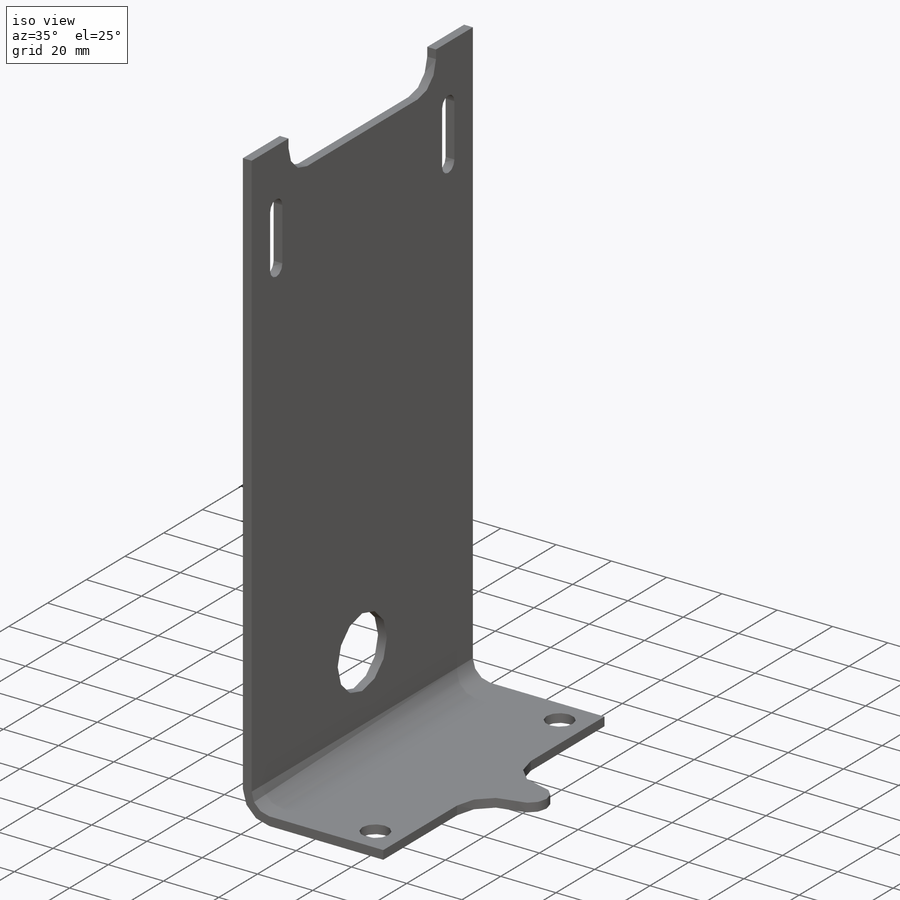
[diagram: iso view]
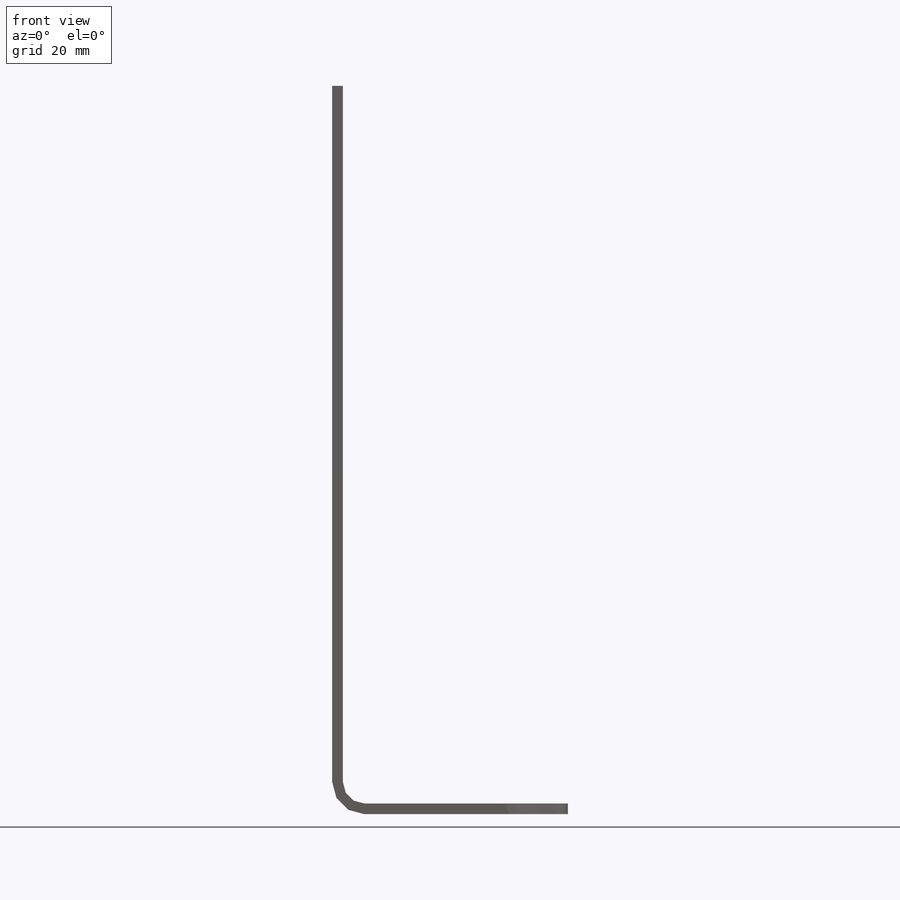
[diagram: front view]
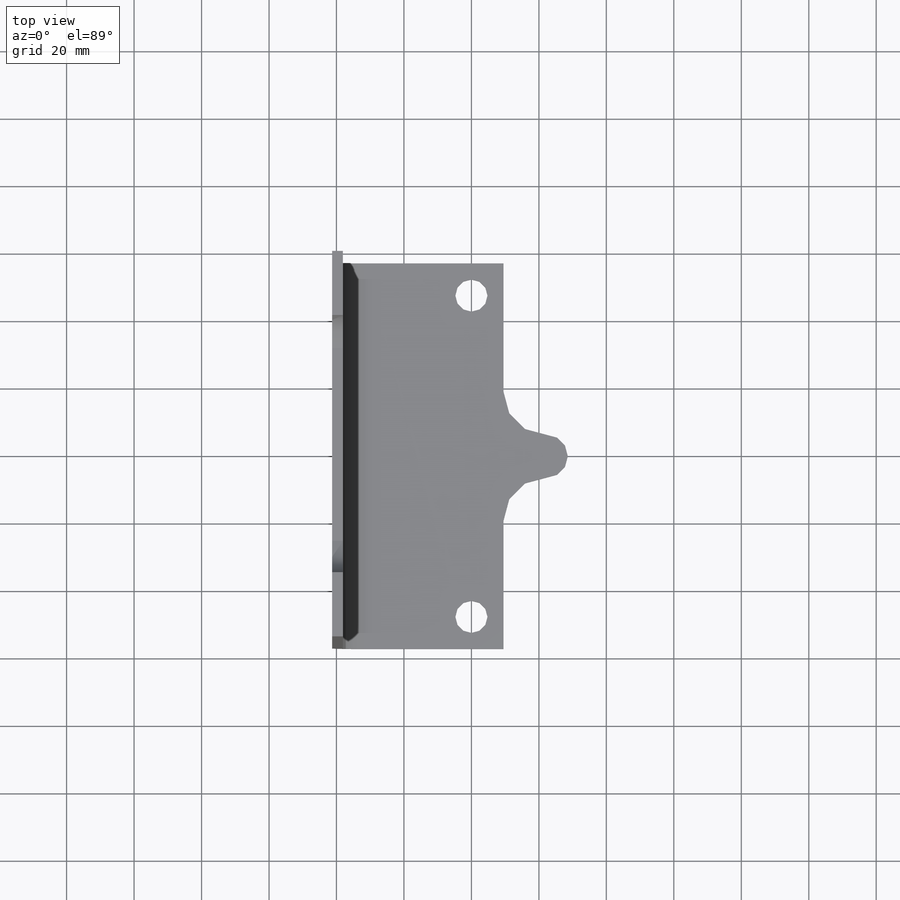
[diagram: top view]
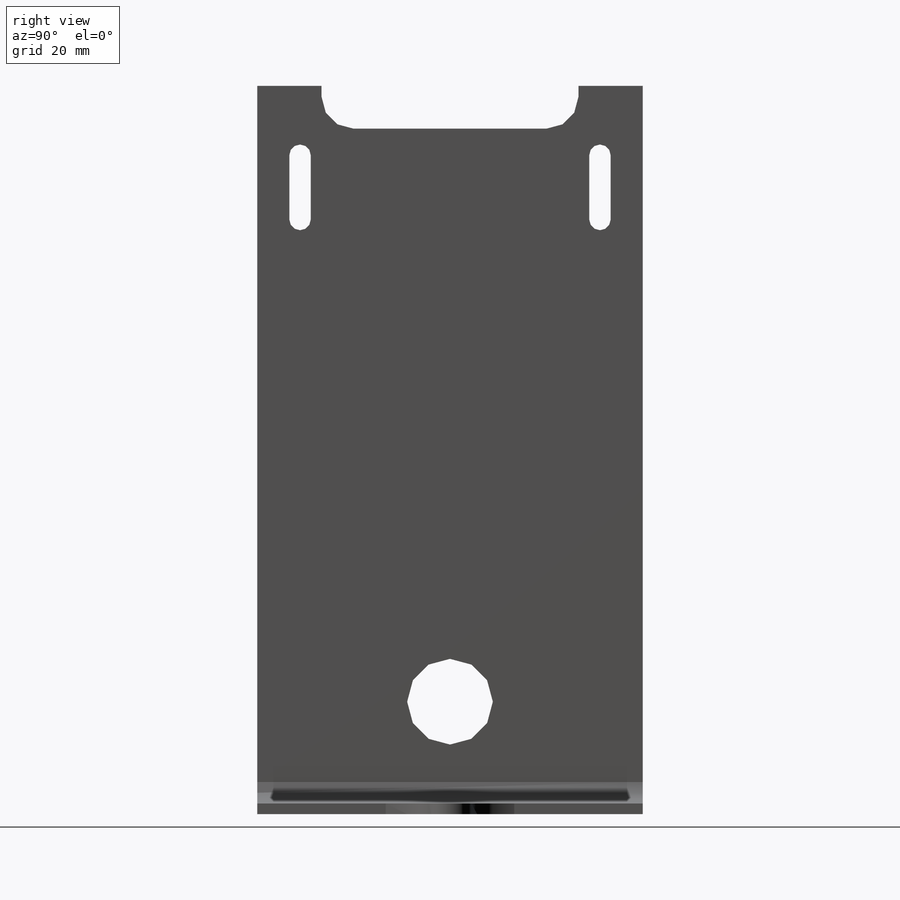
[diagram: right view]
SOLIDWORKS PART (.sldprt)
format: sldprt  version: not decoded by parser v0  size: 589,312 bytes
history: native  units: mm
features: sketch x9, cut_extrude x4, extrude x2, material x1, fillet x1, sheet_metal_op x1 + 2 further entries (+13 scaffold rows collapsed; 1 parser-record rows omitted)
feature tree (34):
  "Annotations"  RD1=56.240348mm
  scaffold x13  (default folders/planes/origin — collapsed)
  material  "Material <not specified>"
  sketch  "Sketch1"  dims[c1.D2=4.7625mm c1.D1=3.175mm c1.D3=6.35mm c1.D4=215.9mm c2.D3=41.275mm]
  extrude  "Extrude1"  [1 undecoded]
  sketch  "Sketch2"
  cut_extrude  "Cut-Extrude2"  [1 undecoded]
  sketch  "Sketch3"  dims[D1=12.7mm D2=12.7mm D3=0.0mm]
  extrude  "Extrude2"  Depth=3.175mm
  sketch  "Sketch4"  dims[D1=25.4mm]
  cut_extrude  "Cut-Extrude3"  [1 undecoded]
  sketch  "Sketch5"  dims[D1=19.05mm D2=12.7mm]
  cut_extrude  "Cut-Extrude4"  [1 undecoded]
  fillet  "Fillet1"  Radius=9.525mm
  sketch  "Sketch6"
  cut_extrude  "Cut-Extrude7"  [1 undecoded]
  sheet_metal_op  "Sheet-Metal1"  Thickness=3.175mm
  sketch  "Sharp-Sketch1"  dims[D1=0.0mm]
  sketch  "Flat-Sketch1"  dims[D1=0.0mm]
  "Flat-Pattern1"
  sketch  "Bend-Lines1"
  parser-record x1  (decoder bookkeeping rows leaked as tree rows — omitted from the tree; the rows remain in map.json)
decode coverage: 9 of 17 modeling features carry decoded parameters; 2 rows unclassified (native names shown)
note: 5 parameter values undecoded
summary: no parameter record found for 5 features
note: suppression state not decoded; provenance and decode notes live in map.json
